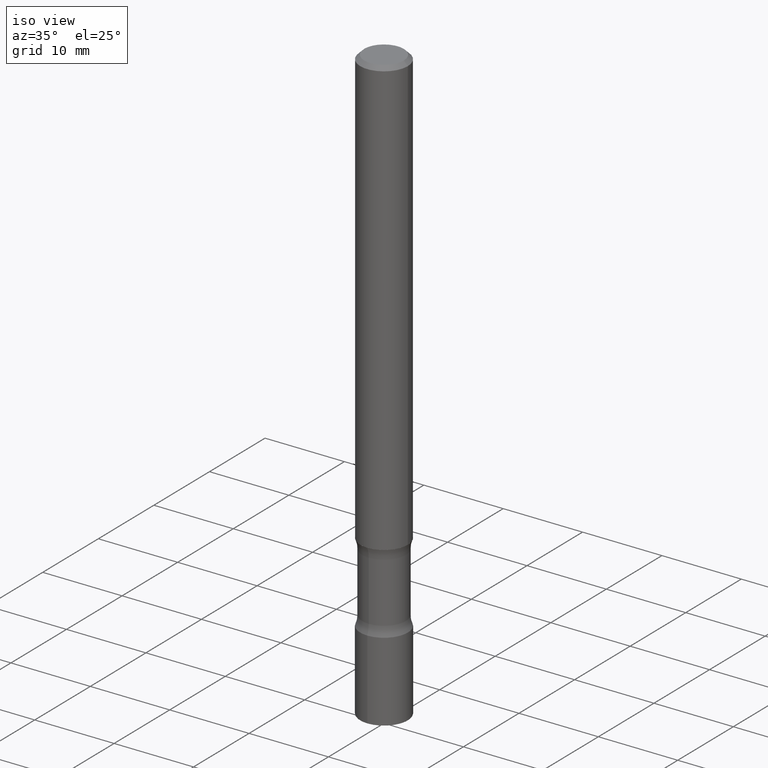
[diagram: clean part render]
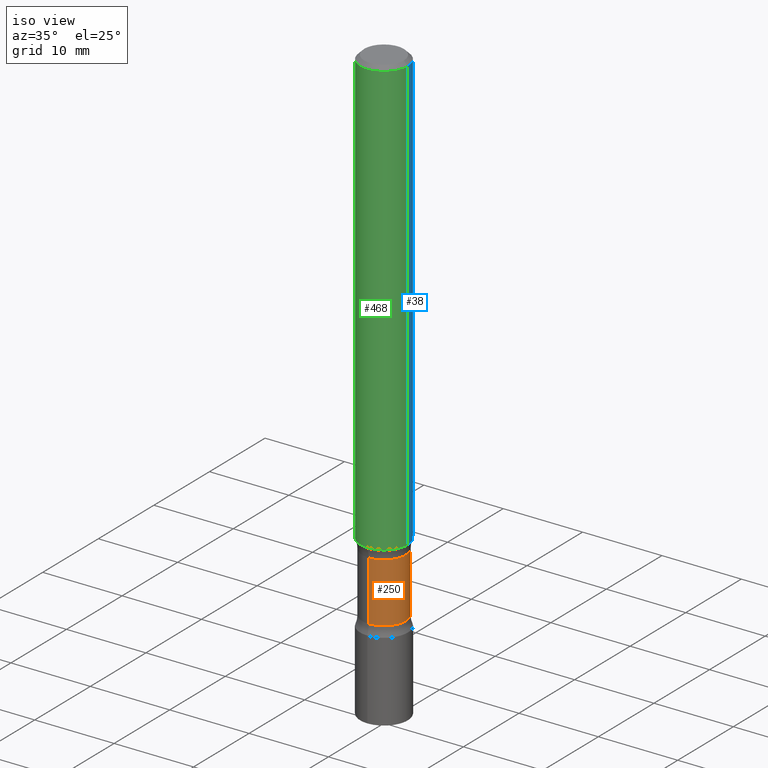
[diagram: same view with three faces highlighted in distinct colors, each labeled with its STEP entity id]
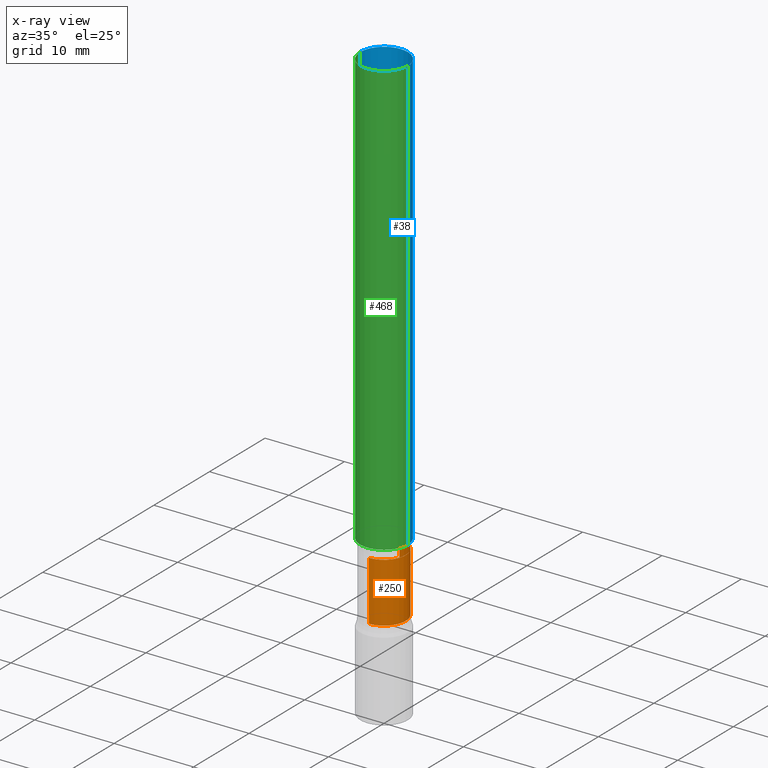
[diagram: x-ray of the same camera — body ghosted, the three highlighted faces saturated]
A machine part, iso view with three faces highlighted in distinct colors.
The next image is the same camera in x-ray (body ghosted, the three faces saturated) — at least one of them is partly hidden behind the body in this view.
Their STEP definitions:

[orange] entity #250 — the highlighted cylindrical surface (edge-blend (fillet) strip) has radius 2.7445 mm, axis along (0, -0, -1).
#18 = DIRECTION ( 'NONE',  ( 1.613693020239834494E-29, -4.682631606054515961E-15, -1.000000000000000000 ) ) ;
#32 = VERTEX_POINT ( 'NONE', #385 ) ;
#62 = DIRECTION ( 'NONE',  ( 6.982962677686265922E-15, 1.000000000000000000, -5.056636730521544995E-15 ) ) ;
#75 = ORIENTED_EDGE ( 'NONE', *, *, #310, .F. ) ;
#81 = CARTESIAN_POINT ( 'NONE',  ( 5.719349289492271294E-29, -7.296791547408544304E-15, -2.214507000519274627 ) ) ;
#84 = CYLINDRICAL_SURFACE ( 'NONE', #113, 0.1080499999999997296 ) ;
#88 = CARTESIAN_POINT ( 'NONE',  ( 7.545091173240547993E-16, 0.1080499999999922217, -2.214507000519275071 ) ) ;
#91 = ORIENTED_EDGE ( 'NONE', *, *, #295, .F. ) ;
#105 = LINE ( 'NONE', #254, #192 ) ;
#106 = EDGE_CURVE ( 'NONE', #32, #450, #105, .T. ) ;
#113 = AXIS2_PLACEMENT_3D ( 'NONE', #476, #399, #434 ) ;
#131 = FACE_OUTER_BOUND ( 'NONE', #227, .T. ) ;
#137 = ORIENTED_EDGE ( 'NONE', *, *, #255, .T. ) ;
#138 = DIRECTION ( 'NONE',  ( 1.613693020239834494E-29, -4.682631606054515961E-15, -1.000000000000000000 ) ) ;
#143 = CARTESIAN_POINT ( 'NONE',  ( 6.196172983594957992E-29, -8.680443625292024117E-15, -2.509992999480725295 ) ) ;
#151 = VERTEX_POINT ( 'NONE', #88 ) ;
#192 = VECTOR ( 'NONE', #223, 39.37007874015748143 ) ;
#220 = CARTESIAN_POINT ( 'NONE',  ( 7.545091173240683085E-16, 0.1080499999999889743, -2.952800000000000313 ) ) ;
#223 = DIRECTION ( 'NONE',  ( 1.613693020239834494E-29, -4.682631606054515961E-15, -1.000000000000000000 ) ) ;
#226 = AXIS2_PLACEMENT_3D ( 'NONE', #81, #229, #395 ) ;
#227 = EDGE_LOOP ( 'NONE', ( #137, #390, #75, #91 ) ) ;
#229 = DIRECTION ( 'NONE',  ( 1.613693020239834494E-29, -4.682631606054515961E-15, -1.000000000000000000 ) ) ;
#250 = ADVANCED_FACE ( 'NONE', ( #131 ), #84, .T. ) ;
#254 = CARTESIAN_POINT ( 'NONE',  ( -7.412768086591430143E-16, -0.1080500000000104988, -2.952799999999998981 ) ) ;
#255 = EDGE_CURVE ( 'NONE', #151, #32, #392, .T. ) ;
#275 = AXIS2_PLACEMENT_3D ( 'NONE', #143, #18, #62 ) ;
#295 = EDGE_CURVE ( 'NONE', #151, #416, #327, .T. ) ;
#310 = EDGE_CURVE ( 'NONE', #416, #450, #490, .T. ) ;
#327 = LINE ( 'NONE', #220, #338 ) ;
#338 = VECTOR ( 'NONE', #138, 39.37007874015748143 ) ;
#385 = CARTESIAN_POINT ( 'NONE',  ( -7.757508110979558221E-16, -0.1080500000000068073, -2.214507000519274182 ) ) ;
#390 = ORIENTED_EDGE ( 'NONE', *, *, #106, .T. ) ;
#392 = CIRCLE ( 'NONE', #226, 0.1080499999999995075 ) ;
#395 = DIRECTION ( 'NONE',  ( 6.982962677686266711E-15, 1.000000000000000000, -5.056636730521565505E-15 ) ) ;
#399 = DIRECTION ( 'NONE',  ( 1.613693020239834494E-29, -4.682631606054515961E-15, -1.000000000000000000 ) ) ;
#408 = CARTESIAN_POINT ( 'NONE',  ( 7.545091173240625893E-16, 0.1080499999999912641, -2.509992999480725739 ) ) ;
#416 = VERTEX_POINT ( 'NONE', #408 ) ;
#430 = CARTESIAN_POINT ( 'NONE',  ( -7.757508110979535541E-16, -0.1080500000000086114, -2.509992999480724407 ) ) ;
#434 = DIRECTION ( 'NONE',  ( 6.982962677686265922E-15, 1.000000000000000000, -5.056636730521555250E-15 ) ) ;
#450 = VERTEX_POINT ( 'NONE', #430 ) ;
#476 = CARTESIAN_POINT ( 'NONE',  ( 6.910727549646248509E-29, -1.075394568130577733E-14, -2.952799999999999869 ) ) ;
#490 = CIRCLE ( 'NONE', #275, 0.1080499999999999378 ) ;

[blue] entity #38 — the highlighted cylindrical surface (edge-blend (fillet) strip) has radius 2.9997 mm, axis along (-0, 0, 1).
#20 = DIRECTION ( 'NONE',  ( 1.000000000000000000, -6.982962677686265922E-15, 0.000000000000000000 ) ) ;
#22 = EDGE_LOOP ( 'NONE', ( #314, #97, #202, #175 ) ) ;
#38 = ADVANCED_FACE ( 'NONE', ( #425 ), #153, .T. ) ;
#41 = VERTEX_POINT ( 'NONE', #500 ) ;
#70 = DIRECTION ( 'NONE',  ( -2.445468806185136877E-29, 3.491481338843145188E-15, 1.000000000000000000 ) ) ;
#97 = ORIENTED_EDGE ( 'NONE', *, *, #459, .T. ) ;
#98 = DIRECTION ( 'NONE',  ( 1.000000000000000000, -6.982962677686270655E-15, 0.000000000000000000 ) ) ;
#101 = CARTESIAN_POINT ( 'NONE',  ( 0.1181000000000000383, -8.385141583365697263E-15, -2.165400000000000436 ) ) ;
#107 = EDGE_CURVE ( 'NONE', #291, #301, #335, .T. ) ;
#110 = DIRECTION ( 'NONE',  ( -2.445468806185136877E-29, 3.491481338843145188E-15, 1.000000000000000000 ) ) ;
#153 = CYLINDRICAL_SURFACE ( 'NONE', #336, 0.1180999999999998301 ) ;
#175 = ORIENTED_EDGE ( 'NONE', *, *, #107, .F. ) ;
#178 = AXIS2_PLACEMENT_3D ( 'NONE', #455, #415, #98 ) ;
#188 = CARTESIAN_POINT ( 'NONE',  ( 0.000000000000000000, 0.000000000000000000, 0.000000000000000000 ) ) ;
#202 = ORIENTED_EDGE ( 'NONE', *, *, #349, .F. ) ;
#218 = DIRECTION ( 'NONE',  ( -2.445468806185136597E-29, 3.491481338843145583E-15, 1.000000000000000000 ) ) ;
#235 = CIRCLE ( 'NONE', #178, 0.1181000000000000383 ) ;
#249 = CARTESIAN_POINT ( 'NONE',  ( 0.1180999999999996219, -8.800544403136782737E-16, -0.02000000000000000042 ) ) ;
#256 = CARTESIAN_POINT ( 'NONE',  ( 0.1180999999999998301, -8.246878922347468821E-16, 5.758764772214991332E-30 ) ) ;
#267 = LINE ( 'NONE', #433, #422 ) ;
#288 = VERTEX_POINT ( 'NONE', #352 ) ;
#291 = VERTEX_POINT ( 'NONE', #101 ) ;
#301 = VERTEX_POINT ( 'NONE', #249 ) ;
#314 = ORIENTED_EDGE ( 'NONE', *, *, #321, .T. ) ;
#321 = EDGE_CURVE ( 'NONE', #291, #288, #235, .T. ) ;
#330 = CIRCLE ( 'NONE', #387, 0.1180999999999996219 ) ;
#332 = CARTESIAN_POINT ( 'NONE',  ( 4.890937612370273159E-31, -6.982962677686291609E-17, -0.02000000000000000042 ) ) ;
#335 = LINE ( 'NONE', #256, #478 ) ;
#336 = AXIS2_PLACEMENT_3D ( 'NONE', #188, #429, #424 ) ;
#349 = EDGE_CURVE ( 'NONE', #301, #41, #330, .T. ) ;
#352 = CARTESIAN_POINT ( 'NONE',  ( -0.1181000000000000383, -2.975990688021221641E-15, -2.165400000000000436 ) ) ;
#387 = AXIS2_PLACEMENT_3D ( 'NONE', #332, #218, #20 ) ;
#415 = DIRECTION ( 'NONE',  ( -2.445468806185136597E-29, 3.491481338843145583E-15, 1.000000000000000000 ) ) ;
#422 = VECTOR ( 'NONE', #110, 39.37007874015748143 ) ;
#424 = DIRECTION ( 'NONE',  ( 1.000000000000000000, -6.982962677686266711E-15, 4.876176775795935232E-29 ) ) ;
#425 = FACE_OUTER_BOUND ( 'NONE', #22, .T. ) ;
#429 = DIRECTION ( 'NONE',  ( -2.445468806185136597E-29, 3.491481338843145583E-15, 1.000000000000000000 ) ) ;
#433 = CARTESIAN_POINT ( 'NONE',  ( -0.1180999999999998301, 8.391509709326771124E-16, -5.809262341591035376E-30 ) ) ;
#455 = CARTESIAN_POINT ( 'NONE',  ( 5.295418152913295466E-29, -7.560453691130949000E-15, -2.165400000000000436 ) ) ;
#459 = EDGE_CURVE ( 'NONE', #288, #41, #267, .T. ) ;
#478 = VECTOR ( 'NONE', #70, 39.37007874015748143 ) ;
#500 = CARTESIAN_POINT ( 'NONE',  ( -0.1180999999999996219, 7.548582654578824992E-16, -0.02000000000000000042 ) ) ;

[green] entity #468 — the highlighted cylindrical surface (edge-blend (fillet) strip) has radius 2.9997 mm, axis along (-0, 0, 1).
#6 = DIRECTION ( 'NONE',  ( -2.445468806185136597E-29, 3.491481338843145583E-15, 1.000000000000000000 ) ) ;
#8 = ORIENTED_EDGE ( 'NONE', *, *, #107, .T. ) ;
#36 = CARTESIAN_POINT ( 'NONE',  ( 5.295418152913295466E-29, -7.560453691130949000E-15, -2.165400000000000436 ) ) ;
#41 = VERTEX_POINT ( 'NONE', #500 ) ;
#51 = DIRECTION ( 'NONE',  ( 1.000000000000000000, -6.982962677686265922E-15, 0.000000000000000000 ) ) ;
#70 = DIRECTION ( 'NONE',  ( -2.445468806185136877E-29, 3.491481338843145188E-15, 1.000000000000000000 ) ) ;
#74 = CYLINDRICAL_SURFACE ( 'NONE', #120, 0.1180999999999998301 ) ;
#76 = EDGE_CURVE ( 'NONE', #288, #291, #391, .T. ) ;
#101 = CARTESIAN_POINT ( 'NONE',  ( 0.1181000000000000383, -8.385141583365697263E-15, -2.165400000000000436 ) ) ;
#107 = EDGE_CURVE ( 'NONE', #291, #301, #335, .T. ) ;
#110 = DIRECTION ( 'NONE',  ( -2.445468806185136877E-29, 3.491481338843145188E-15, 1.000000000000000000 ) ) ;
#112 = AXIS2_PLACEMENT_3D ( 'NONE', #36, #460, #462 ) ;
#120 = AXIS2_PLACEMENT_3D ( 'NONE', #154, #300, #389 ) ;
#154 = CARTESIAN_POINT ( 'NONE',  ( 0.000000000000000000, 0.000000000000000000, 0.000000000000000000 ) ) ;
#210 = EDGE_CURVE ( 'NONE', #41, #301, #213, .T. ) ;
#213 = CIRCLE ( 'NONE', #304, 0.1180999999999996219 ) ;
#249 = CARTESIAN_POINT ( 'NONE',  ( 0.1180999999999996219, -8.800544403136782737E-16, -0.02000000000000000042 ) ) ;
#256 = CARTESIAN_POINT ( 'NONE',  ( 0.1180999999999998301, -8.246878922347468821E-16, 5.758764772214991332E-30 ) ) ;
#267 = LINE ( 'NONE', #433, #422 ) ;
#288 = VERTEX_POINT ( 'NONE', #352 ) ;
#291 = VERTEX_POINT ( 'NONE', #101 ) ;
#300 = DIRECTION ( 'NONE',  ( -2.445468806185136597E-29, 3.491481338843145583E-15, 1.000000000000000000 ) ) ;
#301 = VERTEX_POINT ( 'NONE', #249 ) ;
#304 = AXIS2_PLACEMENT_3D ( 'NONE', #315, #6, #51 ) ;
#308 = FACE_OUTER_BOUND ( 'NONE', #367, .T. ) ;
#315 = CARTESIAN_POINT ( 'NONE',  ( 4.890937612370273159E-31, -6.982962677686291609E-17, -0.02000000000000000042 ) ) ;
#335 = LINE ( 'NONE', #256, #478 ) ;
#352 = CARTESIAN_POINT ( 'NONE',  ( -0.1181000000000000383, -2.975990688021221641E-15, -2.165400000000000436 ) ) ;
#367 = EDGE_LOOP ( 'NONE', ( #405, #491, #8, #465 ) ) ;
#389 = DIRECTION ( 'NONE',  ( 1.000000000000000000, -6.982962677686266711E-15, 4.876176775795935232E-29 ) ) ;
#391 = CIRCLE ( 'NONE', #112, 0.1181000000000000383 ) ;
#405 = ORIENTED_EDGE ( 'NONE', *, *, #459, .F. ) ;
#422 = VECTOR ( 'NONE', #110, 39.37007874015748143 ) ;
#433 = CARTESIAN_POINT ( 'NONE',  ( -0.1180999999999998301, 8.391509709326771124E-16, -5.809262341591035376E-30 ) ) ;
#459 = EDGE_CURVE ( 'NONE', #288, #41, #267, .T. ) ;
#460 = DIRECTION ( 'NONE',  ( -2.445468806185136597E-29, 3.491481338843145583E-15, 1.000000000000000000 ) ) ;
#462 = DIRECTION ( 'NONE',  ( 1.000000000000000000, -6.982962677686270655E-15, 0.000000000000000000 ) ) ;
#465 = ORIENTED_EDGE ( 'NONE', *, *, #210, .F. ) ;
#468 = ADVANCED_FACE ( 'NONE', ( #308 ), #74, .T. ) ;
#478 = VECTOR ( 'NONE', #70, 39.37007874015748143 ) ;
#491 = ORIENTED_EDGE ( 'NONE', *, *, #76, .T. ) ;
#500 = CARTESIAN_POINT ( 'NONE',  ( -0.1180999999999996219, 7.548582654578824992E-16, -0.02000000000000000042 ) ) ;